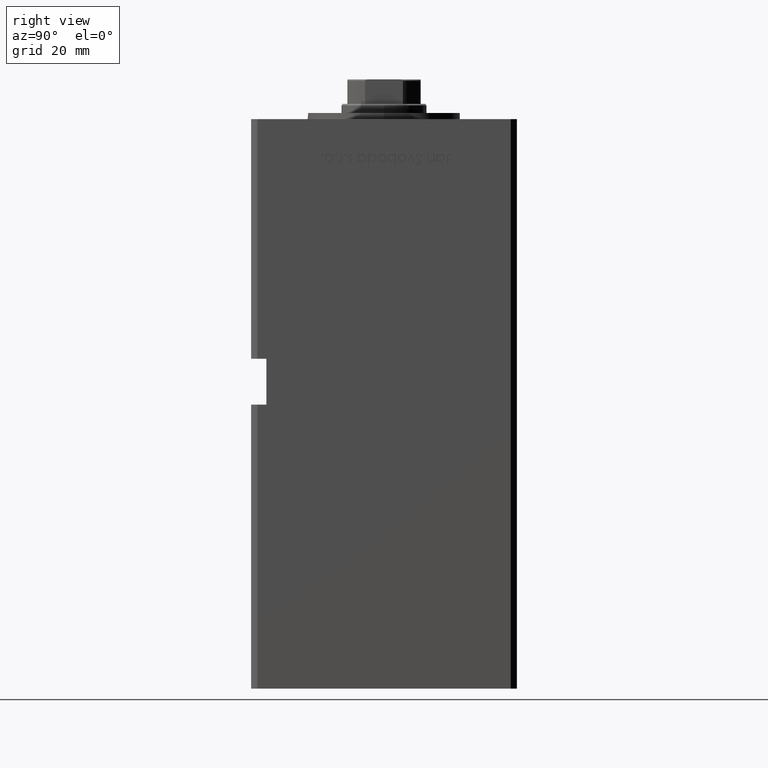
[diagram: clean part render]
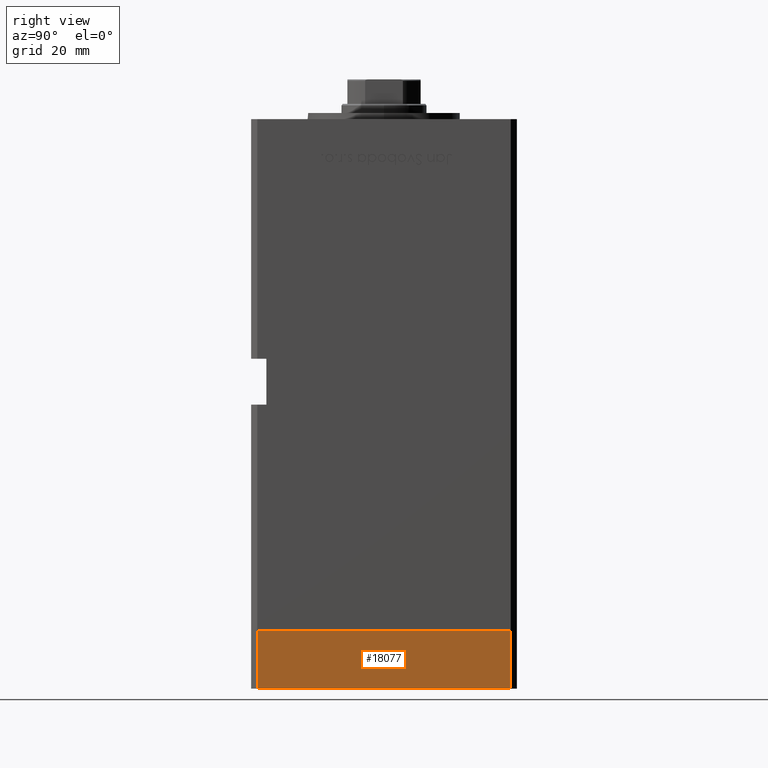
[diagram: same view with one face highlighted and labeled with its STEP entity id]
A machine part, right view. The second image highlights one B-rep face of the part: STEP entity #18077.
In plain terms, the highlighted planar face has unit normal (1, 0, 0).
Its self-contained STEP definition (entity closure, byte-faithful):
#17 = CARTESIAN_POINT ( 'NONE',  ( -50.00000000000000000, -41.50000000000000000, -19.00000000000000000 ) ) ;
#509 = VECTOR ( 'NONE', #14620, 1000.000000000000000 ) ;
#775 = CARTESIAN_POINT ( 'NONE',  ( -50.00000000000000000, -41.50000000000000000, 0.000000000000000000 ) ) ;
#846 = EDGE_LOOP ( 'NONE', ( #10138, #43272, #13589, #26715 ) ) ;
#2265 = LINE ( 'NONE', #17585, #14085 ) ;
#9615 = CARTESIAN_POINT ( 'NONE',  ( -50.00000000000000711, 41.49999999999995026, 0.000000000000000000 ) ) ;
#9870 = VECTOR ( 'NONE', #34747, 1000.000000000000000 ) ;
#10138 = ORIENTED_EDGE ( 'NONE', *, *, #27630, .F. ) ;
#10888 = LINE ( 'NONE', #27056, #21205 ) ;
#12684 = FACE_OUTER_BOUND ( 'NONE', #846, .T. ) ;
#13589 = ORIENTED_EDGE ( 'NONE', *, *, #16110, .T. ) ;
#13977 = EDGE_CURVE ( 'NONE', #37778, #15780, #2265, .T. ) ;
#14085 = VECTOR ( 'NONE', #47246, 1000.000000000000000 ) ;
#14620 = DIRECTION ( 'NONE',  ( 0.000000000000000000, 0.000000000000000000, 1.000000000000000000 ) ) ;
#15780 = VERTEX_POINT ( 'NONE', #9615 ) ;
#16110 = EDGE_CURVE ( 'NONE', #37778, #30337, #34472, .T. ) ;
#16724 = PLANE ( 'NONE',  #52087 ) ;
#17585 = CARTESIAN_POINT ( 'NONE',  ( -50.00000000000000711, 41.49999999999995026, -19.00000000000000000 ) ) ;
#18077 = ADVANCED_FACE ( 'NONE', ( #12684 ), #16724, .T. ) ;
#18294 = CARTESIAN_POINT ( 'NONE',  ( -50.00000000000000711, 41.49999999999995026, -19.00000000000000000 ) ) ;
#19365 = EDGE_CURVE ( 'NONE', #30337, #49905, #22432, .T. ) ;
#21205 = VECTOR ( 'NONE', #31629, 1000.000000000000000 ) ;
#22432 = LINE ( 'NONE', #38876, #509 ) ;
#26715 = ORIENTED_EDGE ( 'NONE', *, *, #19365, .T. ) ;
#27056 = CARTESIAN_POINT ( 'NONE',  ( -50.00000000000000711, 41.49999999999995026, 0.000000000000000000 ) ) ;
#27630 = EDGE_CURVE ( 'NONE', #15780, #49905, #10888, .T. ) ;
#30337 = VERTEX_POINT ( 'NONE', #17 ) ;
#30910 = DIRECTION ( 'NONE',  ( 8.360113137237628665E-17, -1.000000000000000000, 0.000000000000000000 ) ) ;
#31629 = DIRECTION ( 'NONE',  ( 8.360113137237628665E-17, -1.000000000000000000, 0.000000000000000000 ) ) ;
#33171 = CARTESIAN_POINT ( 'NONE',  ( -50.00000000000000711, 41.49999999999995026, -19.00000000000000000 ) ) ;
#34472 = LINE ( 'NONE', #18294, #9870 ) ;
#34694 = DIRECTION ( 'NONE',  ( -1.000000000000000000, -8.360113137237628665E-17, 0.000000000000000000 ) ) ;
#34747 = DIRECTION ( 'NONE',  ( 8.360113137237628665E-17, -1.000000000000000000, 0.000000000000000000 ) ) ;
#37778 = VERTEX_POINT ( 'NONE', #50807 ) ;
#38876 = CARTESIAN_POINT ( 'NONE',  ( -50.00000000000000000, -41.50000000000000000, -19.00000000000000000 ) ) ;
#43272 = ORIENTED_EDGE ( 'NONE', *, *, #13977, .F. ) ;
#47246 = DIRECTION ( 'NONE',  ( 0.000000000000000000, 0.000000000000000000, 1.000000000000000000 ) ) ;
#49905 = VERTEX_POINT ( 'NONE', #775 ) ;
#50807 = CARTESIAN_POINT ( 'NONE',  ( -50.00000000000000711, 41.49999999999995026, -19.00000000000000000 ) ) ;
#52087 = AXIS2_PLACEMENT_3D ( 'NONE', #33171, #34694, #30910 ) ;